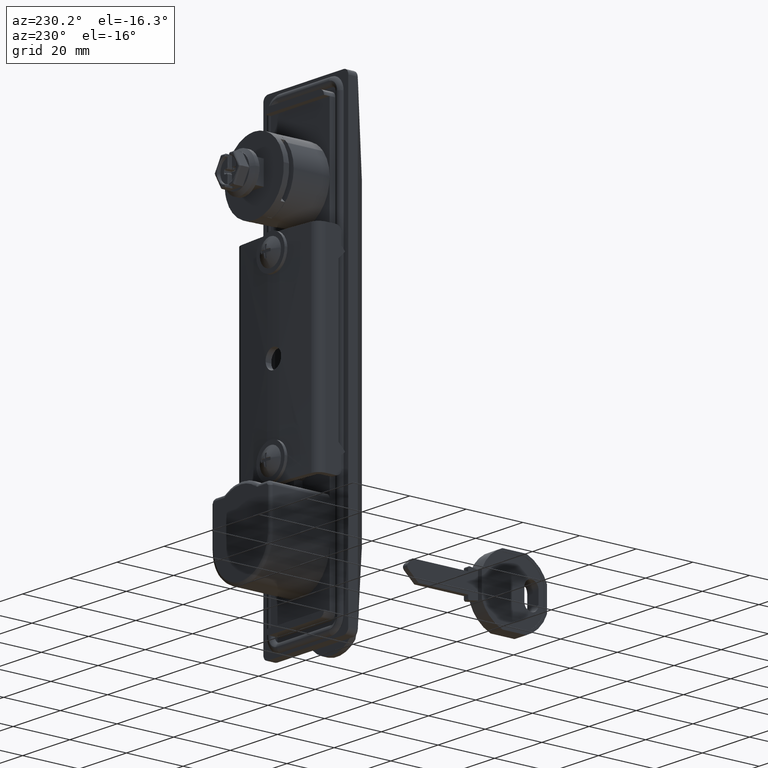
[diagram: clean part render]
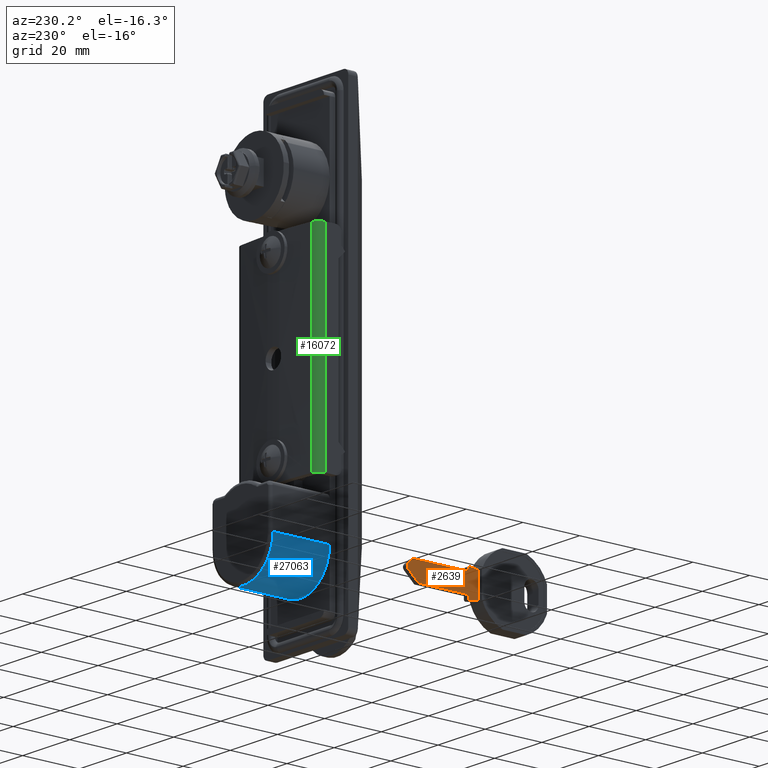
[diagram: same view with three faces highlighted in distinct colors, each labeled with its STEP entity id]
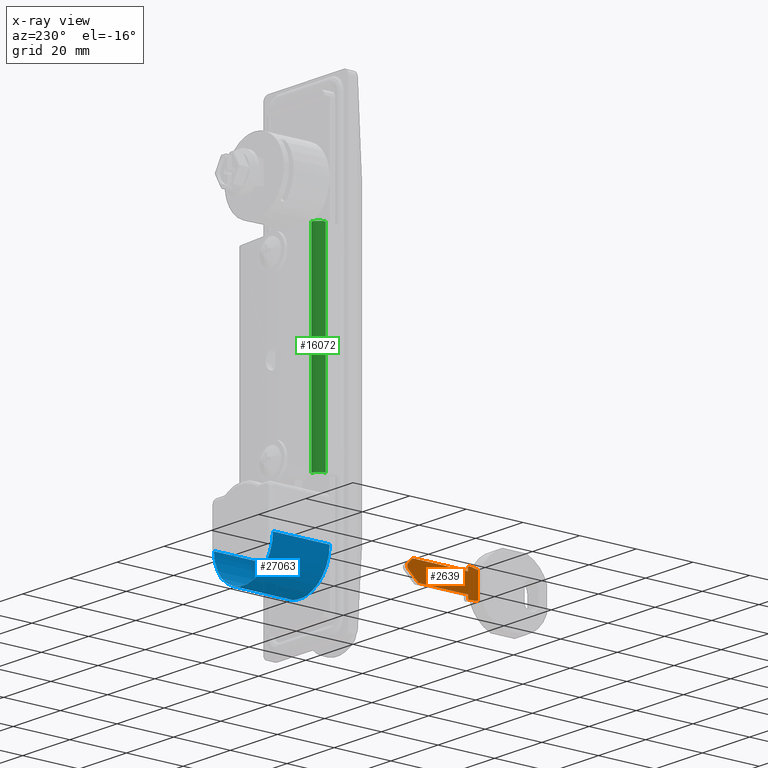
[diagram: x-ray of the same camera — body ghosted, the three highlighted faces saturated]
A machine part, auxiliary view with three faces highlighted in distinct colors.
The next image is the same camera in x-ray (body ghosted, the three faces saturated) — at least one of them is partly hidden behind the body in this view.
Their STEP definitions:

[orange] entity #2639 — the highlighted face is a freeform B-spline surface patch.
#2503=CARTESIAN_POINT('',(-0.898403287181507,-61.341670861515809,-106.542894645480800));
#2504=CARTESIAN_POINT('',(-0.898403287181505,-33.801472342922970,-106.542894645480800));
#2505=CARTESIAN_POINT('',(-0.898403287181507,-61.341670861515809,-95.957114628561001));
#2506=CARTESIAN_POINT('',(-0.898403287181505,-33.801472342922970,-95.957114628561001));
#2507=B_SPLINE_SURFACE_WITH_KNOTS('',1,1,((#2503,#2505),(#2504,#2506)),.UNSPECIFIED.,.F.,.F.,.U.,(2,2),(2,2),(0.0,27.540198518592842),(0.0,10.585780016919809),.UNSPECIFIED.);
#2508=CARTESIAN_POINT('',(-0.898403287181497,-60.090981858945099,-105.574938293955000));
#2509=VERTEX_POINT('',#2508);
#2510=CARTESIAN_POINT('',(-0.898403287181497,-60.052109730419502,-105.470490763571600));
#2511=VERTEX_POINT('',#2510);
#2512=CARTESIAN_POINT('',(-0.898403287181497,-60.090981858945050,-105.574938293955000));
#2513=CARTESIAN_POINT('',(-0.898403287181497,-60.071308234784318,-105.522802941183020));
#2514=CARTESIAN_POINT('',(-0.898403287181497,-60.052109730406187,-105.470490763576510));
#2522=(BOUNDED_CURVE()B_SPLINE_CURVE(2,(#2512,#2513,#2514),.UNSPECIFIED.,.F.,.U.)CURVE()GEOMETRIC_REPRESENTATION_ITEM()QUASI_UNIFORM_CURVE()RATIONAL_B_SPLINE_CURVE((1.0,0.999989653984131,1.0))REPRESENTATION_ITEM(''));
#2523=EDGE_CURVE('',#2509,#2511,#2522,.T.);
#2524=ORIENTED_EDGE('',*,*,#2523,.T.);
#2525=CARTESIAN_POINT('',(-0.898403287181497,-60.052109730419502,-97.029518854662214));
#2526=VERTEX_POINT('',#2525);
#2527=CARTESIAN_POINT('',(-0.898403287181497,-60.052109730419502,-105.470490763571600));
#2528=CARTESIAN_POINT('',(-0.898403287181497,-60.052109730419502,-97.029518854662214));
#2529=QUASI_UNIFORM_CURVE('',1,(#2527,#2528),.UNSPECIFIED.,.F.,.U.);
#2530=EDGE_CURVE('',#2511,#2526,#2529,.T.);
#2531=ORIENTED_EDGE('',*,*,#2530,.T.);
#2532=CARTESIAN_POINT('',(-0.898403287181497,-60.090981858945000,-96.925071324278989));
#2533=VERTEX_POINT('',#2532);
#2534=CARTESIAN_POINT('',(-0.898403287181497,-60.052109730419502,-97.029518854662214));
#2535=CARTESIAN_POINT('',(-0.898403287181497,-60.071308234784311,-96.977206677050887));
#2536=CARTESIAN_POINT('',(-0.898403287181497,-60.090981858945000,-96.925071324278989));
#2544=(BOUNDED_CURVE()B_SPLINE_CURVE(2,(#2534,#2535,#2536),.UNSPECIFIED.,.F.,.U.)CURVE()GEOMETRIC_REPRESENTATION_ITEM()QUASI_UNIFORM_CURVE()RATIONAL_B_SPLINE_CURVE((1.0,0.999989653984132,1.0))REPRESENTATION_ITEM(''));
#2545=EDGE_CURVE('',#2526,#2533,#2544,.T.);
#2546=ORIENTED_EDGE('',*,*,#2545,.T.);
#2547=CARTESIAN_POINT('',(-0.898403287181497,-57.132307626424598,-96.444286761494610));
#2548=VERTEX_POINT('',#2547);
#2549=CARTESIAN_POINT('',(-0.898403287181497,-60.090981858945000,-96.925071324278989));
#2550=CARTESIAN_POINT('',(-0.898403287181497,-57.132307626424598,-96.444286761494610));
#2551=QUASI_UNIFORM_CURVE('',1,(#2549,#2550),.UNSPECIFIED.,.F.,.U.);
#2552=EDGE_CURVE('',#2533,#2548,#2551,.T.);
#2553=ORIENTED_EDGE('',*,*,#2552,.T.);
#2554=CARTESIAN_POINT('',(-0.898403287181496,-56.552109564178508,-96.937813152247600));
#2555=VERTEX_POINT('',#2554);
#2556=CARTESIAN_POINT('',(-0.898403287181496,-56.552109564178508,-96.937813152247600));
#2557=CARTESIAN_POINT('',(-0.898403287181497,-56.552054397049382,-96.874664907705238));
#2558=CARTESIAN_POINT('',(-0.898403287181497,-56.574622929985679,-96.757440086062331));
#2559=CARTESIAN_POINT('',(-0.898403287181496,-56.668784161087352,-96.600766793665855));
#2560=CARTESIAN_POINT('',(-0.898403287181497,-56.847582681231742,-96.456631253462376));
#2561=CARTESIAN_POINT('',(-0.898403287181496,-57.025397556349020,-96.426411760201972));
#2562=CARTESIAN_POINT('',(-0.898403287181497,-57.132307626424598,-96.444286761494610));
#2563=B_SPLINE_CURVE_WITH_KNOTS('',3,(#2556,#2557,#2558,#2559,#2560,#2561,#2562),.UNSPECIFIED.,.F.,.U.,(4,1,1,1,4),(0.000000833414884,0.189443344639279,0.351868376553192,0.541276472264449,0.866049721442150),.UNSPECIFIED.);
#2564=EDGE_CURVE('',#2555,#2548,#2563,.T.);
#2565=ORIENTED_EDGE('',*,*,#2564,.F.);
#2566=CARTESIAN_POINT('',(-0.898403287181496,-56.552109564178402,-97.950004652375512));
#2567=VERTEX_POINT('',#2566);
#2568=CARTESIAN_POINT('',(-0.898403287181496,-56.552109564178508,-96.937813152247600));
#2569=CARTESIAN_POINT('',(-0.898403287181496,-56.552109564178402,-97.950004652375512));
#2570=QUASI_UNIFORM_CURVE('',1,(#2568,#2569),.UNSPECIFIED.,.F.,.U.);
#2571=EDGE_CURVE('',#2555,#2567,#2570,.T.);
#2572=ORIENTED_EDGE('',*,*,#2571,.T.);
#2573=CARTESIAN_POINT('',(-0.898403287181495,-37.052108637978151,-97.950004652375512));
#2574=VERTEX_POINT('',#2573);
#2575=CARTESIAN_POINT('',(-0.898403287181496,-56.552109564178402,-97.950004652375512));
#2576=CARTESIAN_POINT('',(-0.898403287181495,-37.052108637978151,-97.950004652375512));
#2577=QUASI_UNIFORM_CURVE('',1,(#2575,#2576),.UNSPECIFIED.,.F.,.U.);
#2578=EDGE_CURVE('',#2567,#2574,#2577,.T.);
#2579=ORIENTED_EDGE('',*,*,#2578,.T.);
#2580=CARTESIAN_POINT('',(-0.898403287181495,-35.425846306234952,-99.494111000752596));
#2581=VERTEX_POINT('',#2580);
#2582=CARTESIAN_POINT('',(-0.898403287181495,-37.052108637978151,-97.950004652375512));
#2583=CARTESIAN_POINT('',(-0.898403287181495,-35.425846306234952,-99.494111000752596));
#2584=QUASI_UNIFORM_CURVE('',1,(#2582,#2583),.UNSPECIFIED.,.F.,.U.);
#2585=EDGE_CURVE('',#2574,#2581,#2584,.T.);
#2586=ORIENTED_EDGE('',*,*,#2585,.T.);
#2587=CARTESIAN_POINT('',(-0.898403287181495,-35.442423418732297,-101.250004809116800));
#2588=VERTEX_POINT('',#2587);
#2589=CARTESIAN_POINT('',(-0.898403287181495,-35.442423418732297,-101.250004809116800));
#2590=CARTESIAN_POINT('',(-0.898403287181496,-35.313511043744562,-101.132488563989400));
#2591=CARTESIAN_POINT('',(-0.898403287181496,-35.126705750705952,-100.865721462102100));
#2592=CARTESIAN_POINT('',(-0.898403287181491,-35.022246713591748,-100.386949265766300));
#2593=CARTESIAN_POINT('',(-0.898403287181504,-35.105686550967221,-99.901647868078655));
#2594=CARTESIAN_POINT('',(-0.898403287181492,-35.299170687605297,-99.614051597289730));
#2595=CARTESIAN_POINT('',(-0.898403287181495,-35.425846306234952,-99.494111000752596));
#2596=B_SPLINE_CURVE_WITH_KNOTS('',3,(#2589,#2590,#2591,#2592,#2593,#2594,#2595),.UNSPECIFIED.,.F.,.U.,(4,1,1,1,4),(0.000000471908332,0.523241455083419,0.954209252271679,1.446604988553462,1.969845971728810),.UNSPECIFIED.);
#2597=EDGE_CURVE('',#2588,#2581,#2596,.T.);
#2598=ORIENTED_EDGE('',*,*,#2597,.F.);
#2599=CARTESIAN_POINT('',(-0.898403287181495,-39.052108732969501,-104.550004965858410));
#2600=VERTEX_POINT('',#2599);
#2601=CARTESIAN_POINT('',(-0.898403287181495,-35.442423418732297,-101.250004809116800));
#2602=CARTESIAN_POINT('',(-0.898403287181495,-39.052108732969501,-104.550004965858410));
#2603=QUASI_UNIFORM_CURVE('',1,(#2601,#2602),.UNSPECIFIED.,.F.,.U.);
#2604=EDGE_CURVE('',#2588,#2600,#2603,.T.);
#2605=ORIENTED_EDGE('',*,*,#2604,.T.);
#2606=CARTESIAN_POINT('',(-0.898403287181496,-56.552109564178402,-104.550004965858410));
#2607=VERTEX_POINT('',#2606);
#2608=CARTESIAN_POINT('',(-0.898403287181495,-39.052108732969501,-104.550004965858410));
#2609=CARTESIAN_POINT('',(-0.898403287181496,-56.552109564178402,-104.550004965858410));
#2610=QUASI_UNIFORM_CURVE('',1,(#2608,#2609),.UNSPECIFIED.,.F.,.U.);
#2611=EDGE_CURVE('',#2600,#2607,#2610,.T.);
#2612=ORIENTED_EDGE('',*,*,#2611,.T.);
#2613=CARTESIAN_POINT('',(-0.898403287181496,-56.552109564178402,-105.562196465986200));
#2614=VERTEX_POINT('',#2613);
#2615=CARTESIAN_POINT('',(-0.898403287181496,-56.552109564178402,-104.550004965858410));
#2616=CARTESIAN_POINT('',(-0.898403287181496,-56.552109564178402,-105.562196465986200));
#2617=QUASI_UNIFORM_CURVE('',1,(#2615,#2616),.UNSPECIFIED.,.F.,.U.);
#2618=EDGE_CURVE('',#2607,#2614,#2617,.T.);
#2619=ORIENTED_EDGE('',*,*,#2618,.T.);
#2620=CARTESIAN_POINT('',(-0.898403287181497,-57.132307626424399,-106.055722856739390));
#2621=VERTEX_POINT('',#2620);
#2622=CARTESIAN_POINT('',(-0.898403287181497,-57.132307626424399,-106.055722856739390));
#2623=CARTESIAN_POINT('',(-0.898403287181495,-57.052166385345579,-106.068918569940610));
#2624=CARTESIAN_POINT('',(-0.898403287181501,-56.913343917564767,-106.057142066545790));
#2625=CARTESIAN_POINT('',(-0.898403287181496,-56.727653517145320,-105.958526763909500));
#2626=CARTESIAN_POINT('',(-0.898403287181492,-56.590273101950622,-105.796591444101590));
#2627=CARTESIAN_POINT('',(-0.898403287181500,-56.551952156349259,-105.643414461321800));
#2628=CARTESIAN_POINT('',(-0.898403287181496,-56.552109564178402,-105.562196465986200));
#2629=B_SPLINE_CURVE_WITH_KNOTS('',3,(#2622,#2623,#2624,#2625,#2626,#2627,#2628),.UNSPECIFIED.,.F.,.U.,(4,1,1,1,4),(0.000000833416012,0.243582766205066,0.406005422199881,0.622467788653053,0.866049721442131),.UNSPECIFIED.);
#2630=EDGE_CURVE('',#2621,#2614,#2629,.T.);
#2631=ORIENTED_EDGE('',*,*,#2630,.F.);
#2632=CARTESIAN_POINT('',(-0.898403287181497,-57.132307626424399,-106.055722856739390));
#2633=CARTESIAN_POINT('',(-0.898403287181497,-60.090981858945099,-105.574938293955000));
#2634=QUASI_UNIFORM_CURVE('',1,(#2632,#2633),.UNSPECIFIED.,.F.,.U.);
#2635=EDGE_CURVE('',#2621,#2509,#2634,.T.);
#2636=ORIENTED_EDGE('',*,*,#2635,.T.);
#2637=EDGE_LOOP('',(#2524,#2531,#2546,#2553,#2565,#2572,#2579,#2586,#2598,#2605,#2612,#2619,#2631,#2636));
#2638=FACE_OUTER_BOUND('',#2637,.T.);
#2639=ADVANCED_FACE('',(#2638),#2507,.F.);

[blue] entity #27063 — the highlighted face is a freeform B-spline surface patch.
#26067=CARTESIAN_POINT('',(12.500000000000000,2.000000094994874,-104.000004939735010));
#26068=VERTEX_POINT('',#26067);
#26074=CARTESIAN_POINT('',(12.500000000000480,22.000001090220501,-104.000004939735010));
#26075=VERTEX_POINT('',#26074);
#26076=CARTESIAN_POINT('',(12.500000000000480,22.000001090220501,-104.000004939735010));
#26077=CARTESIAN_POINT('',(12.500000000000000,2.000000094994874,-104.000004939735010));
#26078=QUASI_UNIFORM_CURVE('',1,(#26076,#26077),.UNSPECIFIED.,.F.,.U.);
#26079=EDGE_CURVE('',#26075,#26068,#26078,.T.);
#26505=CARTESIAN_POINT('',(-12.499999999999520,22.000001090220501,-104.000004939735010));
#26506=VERTEX_POINT('',#26505);
#26534=CARTESIAN_POINT('',(-12.499999999999520,22.000001090220501,-104.000004939735010));
#26535=CARTESIAN_POINT('',(-12.500585942489570,22.000001090220461,-105.278373294214500));
#26536=CARTESIAN_POINT('',(-12.191402589955800,22.000001090220550,-107.272147281131400));
#26537=CARTESIAN_POINT('',(-11.248367413420670,22.000001090220501,-109.547998079351300));
#26538=CARTESIAN_POINT('',(-10.258218185486220,22.000001090220529,-111.223301734272200));
#26539=CARTESIAN_POINT('',(-9.029633290564247,22.000001090220511,-112.739250924017400));
#26540=CARTESIAN_POINT('',(-7.125471324923105,22.000001090220511,-114.381981191496710));
#26541=CARTESIAN_POINT('',(-4.913937122637637,22.000001090220412,-115.599242263962000));
#26542=CARTESIAN_POINT('',(-2.501589176119181,22.000001090220511,-116.314618754708210));
#26543=CARTESIAN_POINT('',(0.048835602687976,22.000001090220579,-116.597662347931400));
#26544=CARTESIAN_POINT('',(2.510073059707605,22.000001090220401,-116.340089106868010));
#26545=CARTESIAN_POINT('',(4.755014924849817,22.000001090220689,-115.613352129674200));
#26546=CARTESIAN_POINT('',(6.403722598803413,22.000001090220220,-114.783499772299390));
#26547=CARTESIAN_POINT('',(7.960767261103985,22.000001090220529,-113.701181504757300));
#26548=CARTESIAN_POINT('',(9.224524762982188,22.000001090220639,-112.497957035357700));
#26549=CARTESIAN_POINT('',(10.526500067882480,22.000001090220390,-110.850683128640600));
#26550=CARTESIAN_POINT('',(11.618083155080329,22.000001090220550,-108.867652913021800));
#26551=CARTESIAN_POINT('',(12.348994715380821,22.000001090220518,-106.403185854880410));
#26552=CARTESIAN_POINT('',(12.500060589545230,22.000001090220501,-104.766970087912400));
#26553=CARTESIAN_POINT('',(12.500000000000480,22.000001090220501,-104.000004939735010));
#26554=B_SPLINE_CURVE_WITH_KNOTS('',3,(#26534,#26535,#26536,#26537,#26538,#26539,#26540,#26541,#26542,#26543,#26544,#26545,#26546,#26547,#26548,#26549,#26550,#26551,#26552,#26553),.UNSPECIFIED.,.F.,.U.,(4,1,1,1,1,1,1,1,1,1,1,1,1,1,1,1,1,4),(0.000000160304218,3.834891421121000,5.982543247659777,7.363140698103070,9.664143388488103,11.811760654205990,14.879765533898420,17.180791918923340,19.328334033277390,22.549588628059588,24.543777515334629,26.384603791386841,28.072021560958628,30.219625691907279,31.600233489128630,34.361454876179593,36.969241892972228,39.270154572037569),.UNSPECIFIED.);
#26555=EDGE_CURVE('',#26506,#26075,#26554,.T.);
#27013=CARTESIAN_POINT('',(12.495716562194950,22.500001115101149,-103.672793085886600));
#27014=CARTESIAN_POINT('',(12.495716562194950,1.487500069492217,-103.672793085886600));
#27015=CARTESIAN_POINT('',(12.840525910536769,22.500001115101156,-116.840530850271220));
#27016=CARTESIAN_POINT('',(12.840525910536769,1.487500069492216,-116.840530850271220));
#27017=CARTESIAN_POINT('',(-0.327211853847898,22.500001115101149,-116.495721501929490));
#27018=CARTESIAN_POINT('',(-0.327211853847899,1.487500069492217,-116.495721501929490));
#27019=CARTESIAN_POINT('',(-13.494949618232567,22.500001115101156,-116.150912153587700));
#27020=CARTESIAN_POINT('',(-13.494949618232569,1.487500069492219,-116.150912153587700));
#27021=CARTESIAN_POINT('',(-12.461466671663610,22.500001115101149,-103.019266243137000));
#27022=CARTESIAN_POINT('',(-12.461466671663620,1.487500069492218,-103.019266243137000));
#27030=(BOUNDED_SURFACE()B_SPLINE_SURFACE(1,2,((#27013,#27015,#27017,#27019,#27021),(#27014,#27016,#27018,#27020,#27022)),.UNSPECIFIED.,.F.,.F.,.U.)B_SPLINE_SURFACE_WITH_KNOTS((2,2),(3,2,3),(0.0,21.012501045608929),(0.0,21.481695298341801,42.963390596683602),.UNSPECIFIED.)GEOMETRIC_REPRESENTATION_ITEM()RATIONAL_B_SPLINE_SURFACE(((1.0,0.688354575693754,1.0,0.688354575693754,1.0),(1.0,0.688354575693754,1.0,0.688354575693754,1.0)))REPRESENTATION_ITEM('')SURFACE());
#27031=CARTESIAN_POINT('',(-12.500000000000000,2.000000094994876,-104.000004939735010));
#27032=VERTEX_POINT('',#27031);
#27033=CARTESIAN_POINT('',(-12.499999999999520,22.000001090220501,-104.000004939735010));
#27034=CARTESIAN_POINT('',(-12.500000000000000,2.000000094994876,-104.000004939735010));
#27035=QUASI_UNIFORM_CURVE('',1,(#27033,#27034),.UNSPECIFIED.,.F.,.U.);
#27036=EDGE_CURVE('',#26506,#27032,#27035,.T.);
#27037=ORIENTED_EDGE('',*,*,#27036,.F.);
#27038=ORIENTED_EDGE('',*,*,#26555,.T.);
#27039=ORIENTED_EDGE('',*,*,#26079,.T.);
#27040=CARTESIAN_POINT('',(-12.500000000000000,2.000000094994876,-104.000004939735010));
#27041=CARTESIAN_POINT('',(-12.500619911283710,2.000000094994874,-105.278360976330210));
#27042=CARTESIAN_POINT('',(-12.151754590015340,2.000000094994894,-107.527803474136210));
#27043=CARTESIAN_POINT('',(-10.819296366818021,2.000000094994881,-110.484804490868400));
#27044=CARTESIAN_POINT('',(-9.185116511679402,2.000000094994896,-112.605210315258800));
#27045=CARTESIAN_POINT('',(-7.203173517401770,2.000000094994906,-114.314870421542100));
#27046=CARTESIAN_POINT('',(-5.099366247529079,2.000000094994899,-115.506674475673900));
#27047=CARTESIAN_POINT('',(-2.900775315033967,2.000000094994904,-116.217894148933100));
#27048=CARTESIAN_POINT('',(-0.517123431408647,2.000000094994921,-116.571673294521300));
#27049=CARTESIAN_POINT('',(2.055636669417037,2.000000094994880,-116.445291202668600));
#27050=CARTESIAN_POINT('',(4.674312248064807,2.000000094994959,-115.685813977171090));
#27051=CARTESIAN_POINT('',(6.764254494106592,2.000000094994810,-114.584999092392590));
#27052=CARTESIAN_POINT('',(8.470808568410815,2.000000094995048,-113.269968795846000));
#27053=CARTESIAN_POINT('',(10.007805473180790,2.000000094994808,-111.615544116385390));
#27054=CARTESIAN_POINT('',(11.178987367990880,2.000000094994944,-109.740584643424500));
#27055=CARTESIAN_POINT('',(12.207164212309500,2.000000094994873,-107.169837654096600));
#27056=CARTESIAN_POINT('',(12.500628850167560,2.000000094994936,-105.278393170505300));
#27057=CARTESIAN_POINT('',(12.500000000000000,2.000000094994874,-104.000004939735010));
#27058=B_SPLINE_CURVE_WITH_KNOTS('',3,(#27040,#27041,#27042,#27043,#27044,#27045,#27046,#27047,#27048,#27049,#27050,#27051,#27052,#27053,#27054,#27055,#27056,#27057),.UNSPECIFIED.,.F.,.U.,(4,1,1,1,1,1,1,1,1,1,1,1,1,1,1,4),(0.000000160242870,3.834891421063190,6.749545866903702,9.664143388440852,11.811760654162899,14.572938368554700,16.873958980819339,18.714792536955429,21.782565385281131,24.543777515319061,26.844800207470289,28.839021148642338,30.986632355120499,33.594449278367357,35.435261054884862,39.270154572037832),.UNSPECIFIED.);
#27059=EDGE_CURVE('',#27032,#26068,#27058,.T.);
#27060=ORIENTED_EDGE('',*,*,#27059,.F.);
#27061=EDGE_LOOP('',(#27037,#27038,#27039,#27060));
#27062=FACE_OUTER_BOUND('',#27061,.T.);
#27063=ADVANCED_FACE('',(#27062),#27030,.T.);

[green] entity #16072 — the highlighted face is a freeform B-spline surface patch.
#15121=CARTESIAN_POINT('',(-17.499999976251249,7.526901903205673,-85.846610498779597));
#15122=VERTEX_POINT('',#15121);
#15165=CARTESIAN_POINT('',(-17.499999976251249,7.526901903205673,-14.846607126460350));
#15166=VERTEX_POINT('',#15165);
#15172=CARTESIAN_POINT('',(-17.499999976251249,7.526901903205673,-14.846607126460350));
#15173=CARTESIAN_POINT('',(-17.499999976251249,7.526901903205673,-85.846610498779597));
#15174=QUASI_UNIFORM_CURVE('',1,(#15172,#15173),.UNSPECIFIED.,.F.,.U.);
#15175=EDGE_CURVE('',#15166,#15122,#15174,.T.);
#16020=CARTESIAN_POINT('',(-14.787537104976851,10.513090640143570,-13.071607042152371));
#16021=CARTESIAN_POINT('',(-14.787537104976851,10.513090640143570,-87.665985585195301));
#16022=CARTESIAN_POINT('',(-17.683856710606928,10.234206782041587,-13.071607042152367));
#16023=CARTESIAN_POINT('',(-17.683856710606928,10.234206782041587,-87.665985585195301));
#16024=CARTESIAN_POINT('',(-17.493578522948599,7.330719624231438,-13.071607042152369));
#16025=CARTESIAN_POINT('',(-17.493578522948599,7.330719624231438,-87.665985585195287));
#16033=(BOUNDED_SURFACE()B_SPLINE_SURFACE(1,2,((#16020,#16022,#16024),(#16021,#16023,#16025)),.UNSPECIFIED.,.F.,.F.,.U.)B_SPLINE_SURFACE_WITH_KNOTS((2,2),(3,3),(0.0,74.594378543042950),(0.0,4.863506785055041),.UNSPECIFIED.)GEOMETRIC_REPRESENTATION_ITEM()RATIONAL_B_SPLINE_SURFACE(((1.0,0.715922803800433,0.994705100580497),(1.0,0.715922803800433,0.994705100580497)))REPRESENTATION_ITEM('')SURFACE());
#16034=CARTESIAN_POINT('',(-14.900855913030760,10.500000498722271,-85.846610498779597));
#16035=VERTEX_POINT('',#16034);
#16036=CARTESIAN_POINT('',(-14.900855913030760,10.500000498722271,-85.846610498779597));
#16037=CARTESIAN_POINT('',(-17.499999976251271,10.149563853191809,-85.846610498779626));
#16038=CARTESIAN_POINT('',(-17.499999976251271,7.526901903205673,-85.846610498779597));
#16046=(BOUNDED_CURVE()B_SPLINE_CURVE(2,(#16036,#16037,#16038),.UNSPECIFIED.,.F.,.U.)CURVE()GEOMETRIC_REPRESENTATION_ITEM()QUASI_UNIFORM_CURVE()RATIONAL_B_SPLINE_CURVE((1.0,0.752867414205213,1.0))REPRESENTATION_ITEM(''));
#16047=EDGE_CURVE('',#16035,#15122,#16046,.T.);
#16048=ORIENTED_EDGE('',*,*,#16047,.T.);
#16049=ORIENTED_EDGE('',*,*,#15175,.F.);
#16050=CARTESIAN_POINT('',(-14.900855913030760,10.500000498722271,-14.846607126460350));
#16051=VERTEX_POINT('',#16050);
#16052=CARTESIAN_POINT('',(-14.900855913030760,10.500000498722271,-14.846607126460350));
#16053=CARTESIAN_POINT('',(-17.499999976251271,10.149563853191809,-14.846607126460352));
#16054=CARTESIAN_POINT('',(-17.499999976251271,7.526901903205673,-14.846607126460350));
#16062=(BOUNDED_CURVE()B_SPLINE_CURVE(2,(#16052,#16053,#16054),.UNSPECIFIED.,.F.,.U.)CURVE()GEOMETRIC_REPRESENTATION_ITEM()QUASI_UNIFORM_CURVE()RATIONAL_B_SPLINE_CURVE((1.0,0.752867414205213,1.0))REPRESENTATION_ITEM(''));
#16063=EDGE_CURVE('',#16051,#15166,#16062,.T.);
#16064=ORIENTED_EDGE('',*,*,#16063,.F.);
#16065=CARTESIAN_POINT('',(-14.900855913030760,10.500000498722271,-14.846607126460350));
#16066=CARTESIAN_POINT('',(-14.900855913030760,10.500000498722271,-85.846610498779597));
#16067=QUASI_UNIFORM_CURVE('',1,(#16065,#16066),.UNSPECIFIED.,.F.,.U.);
#16068=EDGE_CURVE('',#16051,#16035,#16067,.T.);
#16069=ORIENTED_EDGE('',*,*,#16068,.T.);
#16070=EDGE_LOOP('',(#16048,#16049,#16064,#16069));
#16071=FACE_OUTER_BOUND('',#16070,.T.);
#16072=ADVANCED_FACE('',(#16071),#16033,.T.);